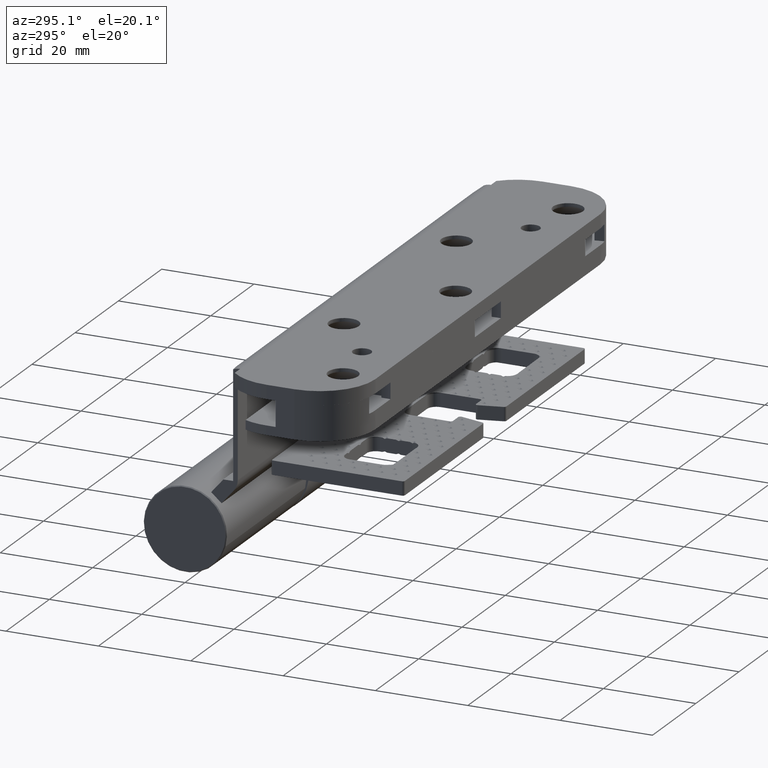
[diagram: clean part render]
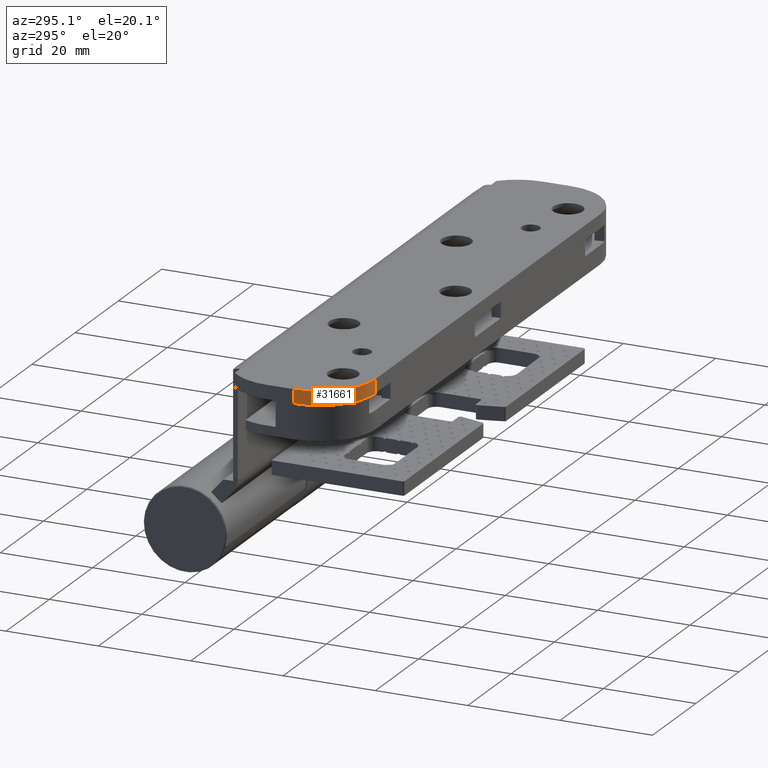
[diagram: same view with one face highlighted and labeled with its STEP entity id]
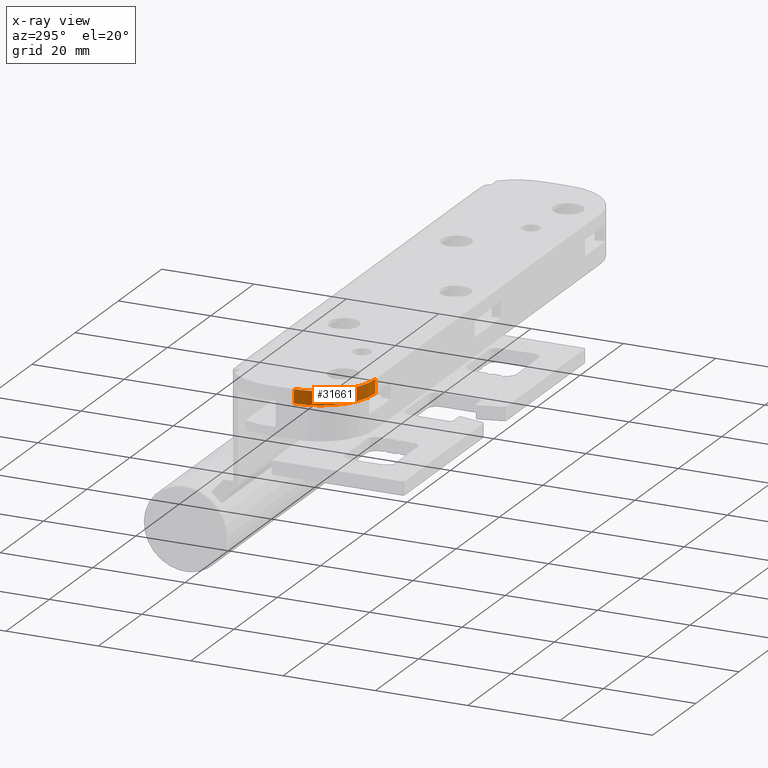
[diagram: x-ray of the same camera — body ghosted, the highlighted face saturated]
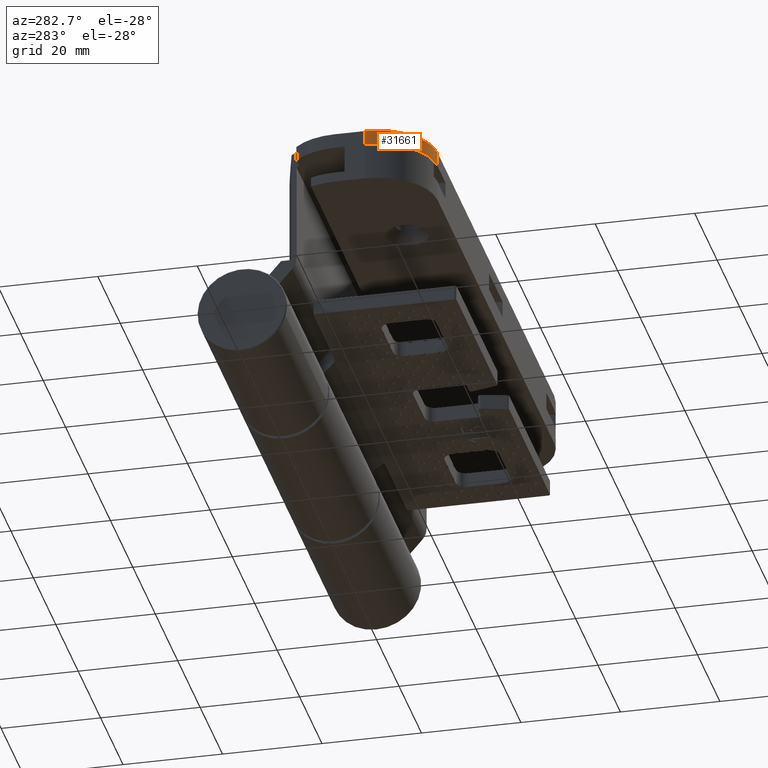
[diagram: same view with one face highlighted and labeled with its STEP entity id]
A machine part, auxiliary view. The second image highlights one B-rep face of the part: STEP entity #31661.
The next image is the same camera in x-ray: the body ghosted, the highlighted face saturated — about 0% of this face is hidden behind the body in this view.
A second angle (auxiliary view) of the same face is appended — the face is thin or edge-on in the first view.
In plain terms, the highlighted cylindrical surface (partial cylindrical patch) has radius 12 mm, axis along (-0, 0, -1).
Its self-contained STEP definition (entity closure, byte-faithful):
#714 = CARTESIAN_POINT ( 'NONE',  ( 2.775557561562891351E-14, 51.99999999999999289, 0.000000000000000000 ) ) ;
#1674 = VERTEX_POINT ( 'NONE', #28899 ) ;
#2487 = EDGE_LOOP ( 'NONE', ( #4213, #9368, #31503, #11795 ) ) ;
#4213 = ORIENTED_EDGE ( 'NONE', *, *, #27744, .T. ) ;
#7340 = VERTEX_POINT ( 'NONE', #47737 ) ;
#7753 = CIRCLE ( 'NONE', #30666, 12.00000000000000355 ) ;
#8311 = DIRECTION ( 'NONE',  ( -1.224646799147359370E-16, -1.376982494605543984E-30, -1.000000000000000000 ) ) ;
#8570 = DIRECTION ( 'NONE',  ( -1.000000000000000000, -5.782411586589355667E-16, 1.224646799147347537E-16 ) ) ;
#9040 = AXIS2_PLACEMENT_3D ( 'NONE', #15737, #32511, #27560 ) ;
#9075 = DIRECTION ( 'NONE',  ( 5.916456789157588541E-31, 1.295404630198729935E-30, 1.000000000000000000 ) ) ;
#9368 = ORIENTED_EDGE ( 'NONE', *, *, #24295, .F. ) ;
#9549 = VERTEX_POINT ( 'NONE', #45961 ) ;
#11795 = ORIENTED_EDGE ( 'NONE', *, *, #40430, .F. ) ;
#15737 = CARTESIAN_POINT ( 'NONE',  ( -11.99999999999995914, 51.99999999999997158, -2.760696280273786662 ) ) ;
#20954 = CARTESIAN_POINT ( 'NONE',  ( -11.99999999999995914, 51.99999999999997158, 3.686287386450715076E-15 ) ) ;
#21717 = LINE ( 'NONE', #26376, #51412 ) ;
#24295 = EDGE_CURVE ( 'NONE', #1674, #7340, #7753, .T. ) ;
#24766 = AXIS2_PLACEMENT_3D ( 'NONE', #20954, #8311, #8570 ) ;
#26376 = CARTESIAN_POINT ( 'NONE',  ( 3.469446951953614189E-14, 51.99999999999999289, -2.760696280273786662 ) ) ;
#27560 = DIRECTION ( 'NONE',  ( 1.000000000000000000, 5.782411586589355667E-16, 0.000000000000000000 ) ) ;
#27733 = VERTEX_POINT ( 'NONE', #714 ) ;
#27744 = EDGE_CURVE ( 'NONE', #9549, #7340, #33436, .T. ) ;
#28899 = CARTESIAN_POINT ( 'NONE',  ( 2.775557561562891351E-14, 51.99999999999999289, 2.999999999999999112 ) ) ;
#29851 = DIRECTION ( 'NONE',  ( 5.916456789157588541E-31, 1.295404630198729935E-30, 1.000000000000000000 ) ) ;
#30666 = AXIS2_PLACEMENT_3D ( 'NONE', #53615, #48943, #52798 ) ;
#31503 = ORIENTED_EDGE ( 'NONE', *, *, #44958, .F. ) ;
#31661 = ADVANCED_FACE ( 'NONE', ( #40485 ), #32231, .T. ) ;
#32231 = CYLINDRICAL_SURFACE ( 'NONE', #9040, 12.00000000000000355 ) ;
#32511 = DIRECTION ( 'NONE',  ( 5.916456789157588541E-31, 1.295404630198729935E-30, 1.000000000000000000 ) ) ;
#33436 = LINE ( 'NONE', #33963, #49253 ) ;
#33963 = CARTESIAN_POINT ( 'NONE',  ( -11.99999999999995204, 63.99999999999997158, -2.760696280273786662 ) ) ;
#40430 = EDGE_CURVE ( 'NONE', #9549, #27733, #43190, .T. ) ;
#40485 = FACE_OUTER_BOUND ( 'NONE', #2487, .T. ) ;
#43190 = CIRCLE ( 'NONE', #24766, 12.00000000000000355 ) ;
#44958 = EDGE_CURVE ( 'NONE', #27733, #1674, #21717, .T. ) ;
#45961 = CARTESIAN_POINT ( 'NONE',  ( -11.99999999999995559, 63.99999999999997158, 3.686287386450715076E-15 ) ) ;
#47737 = CARTESIAN_POINT ( 'NONE',  ( -11.99999999999995204, 63.99999999999997158, 2.999999999999999112 ) ) ;
#48943 = DIRECTION ( 'NONE',  ( 5.916456789157588541E-31, 1.295404630198729935E-30, 1.000000000000000000 ) ) ;
#49253 = VECTOR ( 'NONE', #29851, 1000.000000000000000 ) ;
#51412 = VECTOR ( 'NONE', #9075, 1000.000000000000000 ) ;
#52798 = DIRECTION ( 'NONE',  ( 1.000000000000000000, 5.782411586589355667E-16, 0.000000000000000000 ) ) ;
#53615 = CARTESIAN_POINT ( 'NONE',  ( -11.99999999999996270, 51.99999999999997158, 2.999999999999999112 ) ) ;